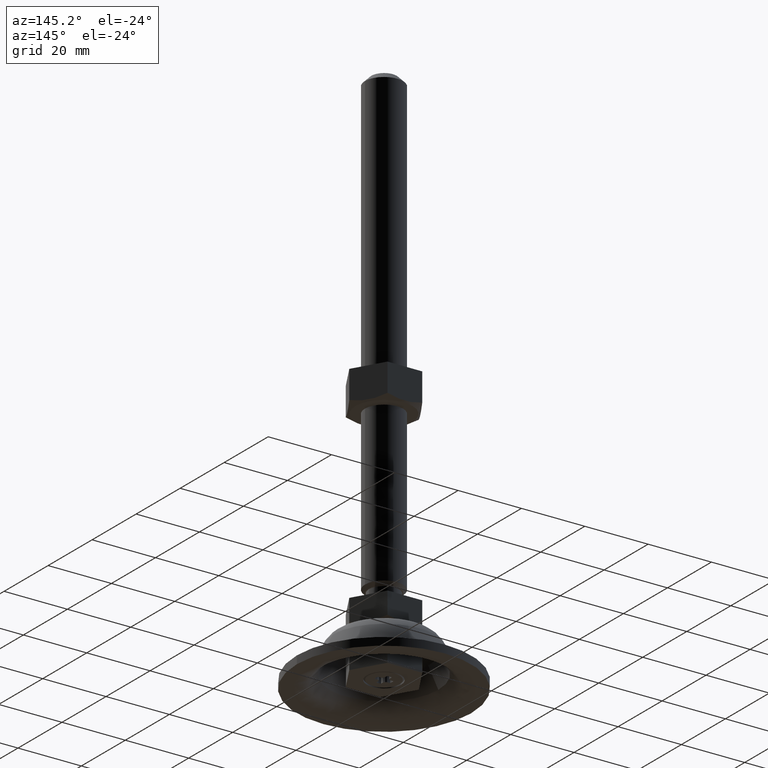
[diagram: clean part render]
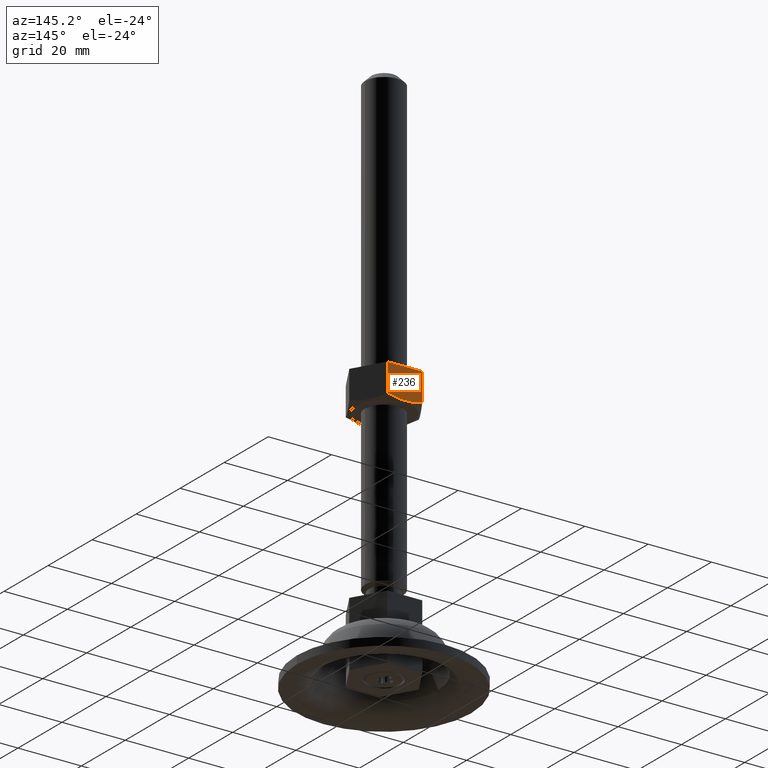
[diagram: same view with one face highlighted and labeled with its STEP entity id]
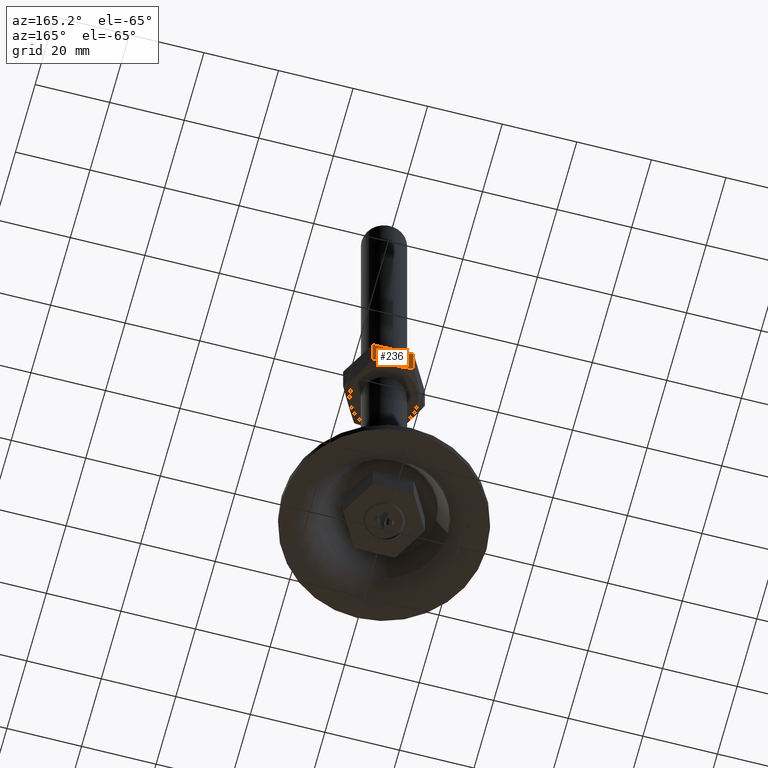
[diagram: same view with one face highlighted and labeled with its STEP entity id]
A machine part, auxiliary view. The second image highlights one B-rep face of the part: STEP entity #236.
A second angle (auxiliary view) of the same face is appended — the face is thin or edge-on in the first view.
In plain terms, the highlighted planar face has unit normal (0, -1, 0).
Its self-contained STEP definition (entity closure, byte-faithful):
#236=ADVANCED_FACE('',(#1128),#1127,.F.);
#1127=PLANE('',#2015);
#1128=FACE_OUTER_BOUND('',#2016,.T.);
#2012=CARTESIAN_POINT('',(-6.58179306876E+00,9.50000000000E+00,5.43174264435E+01));
#2013=DIRECTION('',(4.14322552494E-14,-1.00000000000E+00,0.00000000000E+00));
#2014=DIRECTION('',(1.00000000000E+00,4.14322552494E-14,0.00000000000E+00));
#2015=AXIS2_PLACEMENT_3D('',#2012,#2013,#2014);
#2016=EDGE_LOOP('',(#2469,#2470,#2471,#2472));
#2469=ORIENTED_EDGE('',*,*,#2716,.F.);
#2470=ORIENTED_EDGE('',*,*,#2717,.T.);
#2471=ORIENTED_EDGE('',*,*,#2713,.T.);
#2472=ORIENTED_EDGE('',*,*,#2706,.T.);
#2706=EDGE_CURVE('',#4002,#4030,#4037,.T.);
#2713=EDGE_CURVE('',#4085,#4002,#4086,.T.);
#2716=EDGE_CURVE('',#4105,#4030,#4106,.T.);
#2717=EDGE_CURVE('',#4105,#4085,#4112,.T.);
#4002=VERTEX_POINT('',#5032);
#4030=VERTEX_POINT('',#5048);
#4037=LINE('',#5052,#5053);
#4085=VERTEX_POINT('',#5085);
#4086=LINE('',#5086,#5087);
#4105=VERTEX_POINT('',#5105);
#4106=LINE('',#5106,#5107);
#4112=(BOUNDED_CURVE() B_SPLINE_CURVE(3,(#5109,#5110,#5111,#5112,#5113,#5114,#5115,#5116,#5117,#5118),.UNSPECIFIED.,.F.,.F.) B_SPLINE_CURVE_WITH_KNOTS((4,2,2,2,4),(-2.10762574987E-02,-1.83000628377E-02,-1.55238681767E-02,-1.27476735158E-02,-9.97147885478E-03),.UNSPECIFIED.) CURVE() GEOMETRIC_REPRESENTATION_ITEM() RATIONAL_B_SPLINE_CURVE((1.00000000000E+00,1.00000000000E+00,1.00000000000E+00,1.00000000000E+00,1.00000000000E+00,1.00000000000E+00,1.00000000000E+00,1.00000000000E+00,1.00000000000E+00,1.00000000000E+00)) REPRESENTATION_ITEM('') );
#5032=CARTESIAN_POINT('',(-5.48482755730E+00,9.50000000000E+00,6.49999998970E+01));
#5048=CARTESIAN_POINT('',(5.48482755730E+00,9.50000000000E+00,6.49999998970E+01));
#5052=CARTESIAN_POINT('',(-5.48482755730E+00,9.50000000000E+00,6.49999998970E+01));
#5053=VECTOR('',#5054,1.09696551146E+01);
#5054=DIRECTION('',(1.00000000000E+00,4.14550271759E-14,0.00000000000E+00));
#5085=CARTESIAN_POINT('',(-5.48482755730E+00,9.50000000000E+00,5.61371802922E+01));
#5086=CARTESIAN_POINT('',(-5.48482755730E+00,9.50000000000E+00,5.61371802922E+01));
#5087=VECTOR('',#5088,8.86281960479E+00);
#5088=DIRECTION('',(0.00000000000E+00,0.00000000000E+00,1.00000000000E+00));
#5105=CARTESIAN_POINT('',(5.48482755730E+00,9.50000000000E+00,5.61371802922E+01));
#5106=CARTESIAN_POINT('',(5.48482755730E+00,9.50000000000E+00,5.61371802922E+01));
#5107=VECTOR('',#5108,8.86281960477E+00);
#5108=DIRECTION('',(0.00000000000E+00,0.00000000000E+00,1.00000000000E+00));
#5109=CARTESIAN_POINT('',(5.48482755730E+00,9.50000000000E+00,5.61371802922E+01));
#5110=CARTESIAN_POINT('',(4.59813882849E+00,9.50000000000E+00,5.58812153435E+01));
#5111=CARTESIAN_POINT('',(3.70004096455E+00,9.50000000000E+00,5.56681144882E+01));
#5112=CARTESIAN_POINT('',(1.86953253222E+00,9.50000000000E+00,5.53708255264E+01));
#5113=CARTESIAN_POINT('',(9.29572260565E-01,9.50000000000E+00,5.52887800208E+01));
#5114=CARTESIAN_POINT('',(-9.25838032840E-01,9.50000000000E+00,5.52885694847E+01));
#5115=CARTESIAN_POINT('',(-1.84699272881E+00,9.50000000000E+00,5.53682713978E+01));
#5116=CARTESIAN_POINT('',(-3.67815546426E+00,9.50000000000E+00,5.56634801129E+01));
#5117=CARTESIAN_POINT('',(-4.59192443482E+00,9.50000000000E+00,5.58794214028E+01));
#5118=CARTESIAN_POINT('',(-5.48482755730E+00,9.50000000000E+00,5.61371802922E+01));